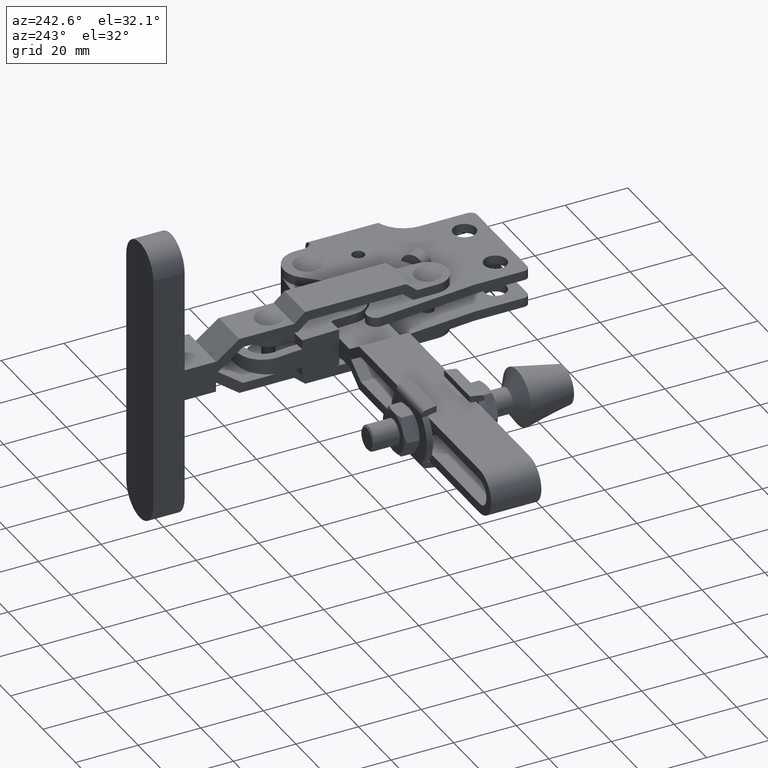
[diagram: clean part render]
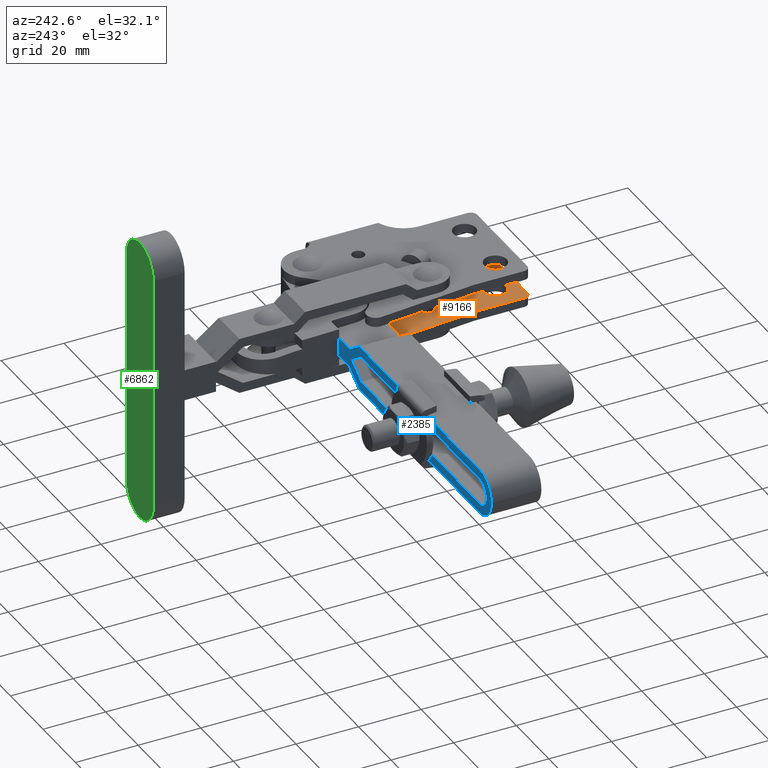
[diagram: same view with three faces highlighted in distinct colors, each labeled with its STEP entity id]
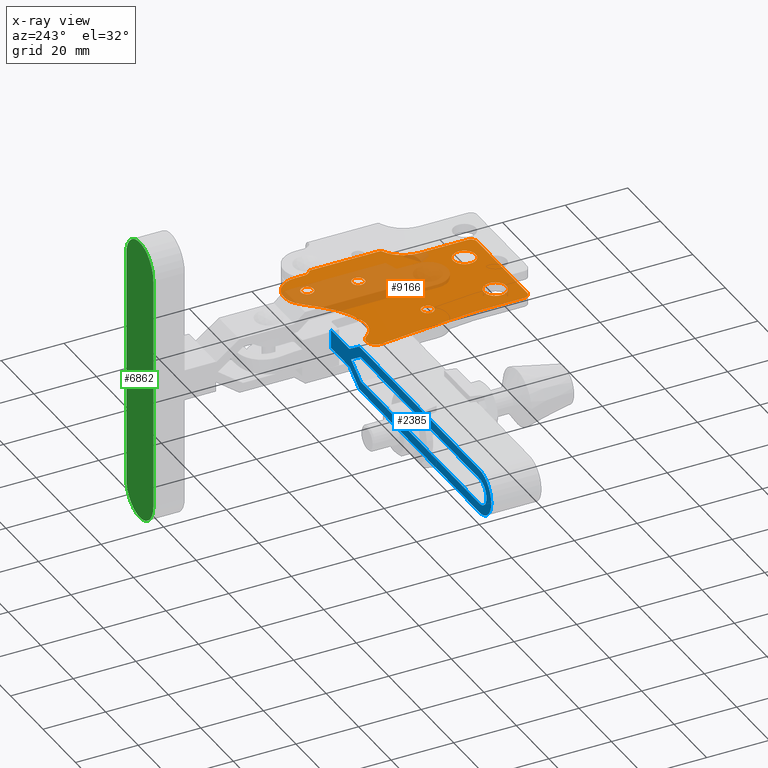
[diagram: x-ray of the same camera — body ghosted, the three highlighted faces saturated]
A machine part, auxiliary view with three faces highlighted in distinct colors.
The next image is the same camera in x-ray (body ghosted, the three faces saturated) — at least one of them is partly hidden behind the body in this view.
Their STEP definitions:

[orange] entity #9166 — the highlighted planar face has unit normal (0, 0, -1).
#13 = DIRECTION ( 'NONE',  ( -7.034546684939453800E-018, -3.150134990220476500E-018, 1.000000000000000000 ) ) ;
#28 = CIRCLE ( 'NONE', #2234, 2.000000000000000000 ) ;
#88 = DIRECTION ( 'NONE',  ( -1.000000000000000000, 0.0000000000000000000, 0.0000000000000000000 ) ) ;
#194 = AXIS2_PLACEMENT_3D ( 'NONE', #7369, #1947, #8280 ) ;
#195 = CIRCLE ( 'NONE', #6566, 3.600000000000047600 ) ;
#256 = AXIS2_PLACEMENT_3D ( 'NONE', #476, #6788, #1373 ) ;
#325 = ORIENTED_EDGE ( 'NONE', *, *, #6746, .F. ) ;
#438 = FACE_OUTER_BOUND ( 'NONE', #10297, .T. ) ;
#476 = CARTESIAN_POINT ( 'NONE',  ( -44.14000000000020000, 34.49999999999974400, -3.000000000000012900 ) ) ;
#538 = VERTEX_POINT ( 'NONE', #10462 ) ;
#550 = CARTESIAN_POINT ( 'NONE',  ( -12.20000000000020400, 39.79999999999972700, -3.000000000000012900 ) ) ;
#650 = EDGE_CURVE ( 'NONE', #8435, #7414, #28, .T. ) ;
#652 = AXIS2_PLACEMENT_3D ( 'NONE', #5413, #13, #6321 ) ;
#657 = VERTEX_POINT ( 'NONE', #4414 ) ;
#716 = EDGE_LOOP ( 'NONE', ( #6043, #5696 ) ) ;
#726 = VECTOR ( 'NONE', #6033, 1000.000000000000000 ) ;
#798 = CARTESIAN_POINT ( 'NONE',  ( -3.018960108299565600, 34.35549740532390200, -3.000000000000012900 ) ) ;
#808 = EDGE_CURVE ( 'NONE', #3385, #3134, #3982, .T. ) ;
#848 = DIRECTION ( 'NONE',  ( -1.000000000000000000, 0.0000000000000000000, 0.0000000000000000000 ) ) ;
#888 = CIRCLE ( 'NONE', #2112, 2.999999999999954300 ) ;
#1190 = CARTESIAN_POINT ( 'NONE',  ( -14.50000000000003600, 24.69999999999972900, -3.000000000000013800 ) ) ;
#1301 = CIRCLE ( 'NONE', #4063, 7.499999999999985800 ) ;
#1349 = DIRECTION ( 'NONE',  ( -0.09966041305296324800, 0.9950215083454793100, 2.433386241199668700E-018 ) ) ;
#1350 = VERTEX_POINT ( 'NONE', #4918 ) ;
#1362 = ORIENTED_EDGE ( 'NONE', *, *, #4899, .T. ) ;
#1373 = DIRECTION ( 'NONE',  ( -1.000000000000000000, 0.0000000000000000000, 0.0000000000000000000 ) ) ;
#1441 = DIRECTION ( 'NONE',  ( -1.000000000000000000, 0.0000000000000000000, 0.0000000000000000000 ) ) ;
#1442 = AXIS2_PLACEMENT_3D ( 'NONE', #7009, #11596, #6114 ) ;
#1475 = VERTEX_POINT ( 'NONE', #5278 ) ;
#1490 = VERTEX_POINT ( 'NONE', #8958 ) ;
#1538 = CARTESIAN_POINT ( 'NONE',  ( -4.700000000000178700, 39.79999999999973400, -3.000000000000012900 ) ) ;
#1611 = EDGE_CURVE ( 'NONE', #7385, #1657, #195, .T. ) ;
#1622 = CARTESIAN_POINT ( 'NONE',  ( -14.20000000000020400, 39.79999999999972700, -3.000000000000012900 ) ) ;
#1631 = ORIENTED_EDGE ( 'NONE', *, *, #4835, .F. ) ;
#1657 = VERTEX_POINT ( 'NONE', #7362 ) ;
#1730 = CARTESIAN_POINT ( 'NONE',  ( -3.018960108299567400, 34.49999999999974400, -3.000000000000013800 ) ) ;
#1850 = CARTESIAN_POINT ( 'NONE',  ( -3.018960108299569200, 11.54236631933047400, -3.000000000000012900 ) ) ;
#1877 = CARTESIAN_POINT ( 'NONE',  ( -34.80000000000018900, 14.09999999999973900, -3.000000000000013800 ) ) ;
#1891 = LINE ( 'NONE', #3996, #8824 ) ;
#1947 = DIRECTION ( 'NONE',  ( 7.034546684939453800E-018, 3.150134990220476500E-018, -1.000000000000000000 ) ) ;
#2031 = EDGE_CURVE ( 'NONE', #11252, #538, #1891, .T. ) ;
#2047 = AXIS2_PLACEMENT_3D ( 'NONE', #2489, #8840, #3406 ) ;
#2091 = DIRECTION ( 'NONE',  ( -1.000000000000000000, 0.0000000000000000000, 0.0000000000000000000 ) ) ;
#2112 = AXIS2_PLACEMENT_3D ( 'NONE', #10154, #4683, #11061 ) ;
#2234 = AXIS2_PLACEMENT_3D ( 'NONE', #9906, #4460, #848 ) ;
#2265 = CARTESIAN_POINT ( 'NONE',  ( -20.65000000000005500, -7.900000000000260600, -3.000000000000012900 ) ) ;
#2438 = ORIENTED_EDGE ( 'NONE', *, *, #9763, .T. ) ;
#2453 = DIRECTION ( 'NONE',  ( -7.034546684939453800E-018, -3.150134990220476500E-018, 1.000000000000000000 ) ) ;
#2489 = CARTESIAN_POINT ( 'NONE',  ( -11.10000000000014500, -13.00000000000019700, -3.000000000000012900 ) ) ;
#2541 = CARTESIAN_POINT ( 'NONE',  ( -44.00000000000016300, 2.999999999999884500, -3.000000000000012900 ) ) ;
#2592 = DIRECTION ( 'NONE',  ( 7.034546684939453800E-018, 3.150134990220476500E-018, -1.000000000000000000 ) ) ;
#2605 = ORIENTED_EDGE ( 'NONE', *, *, #650, .T. ) ;
#2632 = EDGE_CURVE ( 'NONE', #3134, #4194, #2978, .T. ) ;
#2674 = CIRCLE ( 'NONE', #2047, 2.000000000000000000 ) ;
#2810 = CARTESIAN_POINT ( 'NONE',  ( -9.100000000000145300, -13.00000000000018700, -3.000000000000012900 ) ) ;
#2832 = FACE_BOUND ( 'NONE', #7280, .T. ) ;
#2852 = AXIS2_PLACEMENT_3D ( 'NONE', #8041, #2592, #8957 ) ;
#2919 = ORIENTED_EDGE ( 'NONE', *, *, #808, .F. ) ;
#2978 = CIRCLE ( 'NONE', #256, 2.999999999999926300 ) ;
#2987 = ORIENTED_EDGE ( 'NONE', *, *, #10712, .F. ) ;
#3107 = CARTESIAN_POINT ( 'NONE',  ( -11.10000000000014500, -15.00000000000019700, -3.000000000000012900 ) ) ;
#3123 = FACE_BOUND ( 'NONE', #11405, .T. ) ;
#3134 = VERTEX_POINT ( 'NONE', #10186 ) ;
#3140 = DIRECTION ( 'NONE',  ( 7.034546684939453800E-018, 3.150134990220476500E-018, -1.000000000000000000 ) ) ;
#3189 = LINE ( 'NONE', #6786, #10153 ) ;
#3334 = VECTOR ( 'NONE', #10756, 1000.000000000000000 ) ;
#3376 = VERTEX_POINT ( 'NONE', #1877 ) ;
#3385 = VERTEX_POINT ( 'NONE', #7296 ) ;
#3406 = DIRECTION ( 'NONE',  ( -1.000000000000000000, 0.0000000000000000000, 0.0000000000000000000 ) ) ;
#3470 = ORIENTED_EDGE ( 'NONE', *, *, #5221, .F. ) ;
#3504 = CARTESIAN_POINT ( 'NONE',  ( -12.20000000000019100, 39.79999999999973400, -3.000000000000012900 ) ) ;
#3574 = CARTESIAN_POINT ( 'NONE',  ( -36.80000000000019600, 14.09999999999973900, -3.000000000000013800 ) ) ;
#3615 = CARTESIAN_POINT ( 'NONE',  ( -22.23240969598106500, 40.16104804665158700, -3.000000000000012900 ) ) ;
#3626 = ORIENTED_EDGE ( 'NONE', *, *, #6143, .F. ) ;
#3661 = ORIENTED_EDGE ( 'NONE', *, *, #2031, .F. ) ;
#3753 = CARTESIAN_POINT ( 'NONE',  ( -4.700000000000178700, 39.79999999999973400, -3.000000000000012900 ) ) ;
#3789 = ORIENTED_EDGE ( 'NONE', *, *, #9113, .F. ) ;
#3818 = AXIS2_PLACEMENT_3D ( 'NONE', #4065, #10423, #4944 ) ;
#3911 = ORIENTED_EDGE ( 'NONE', *, *, #7509, .T. ) ;
#3982 = CIRCLE ( 'NONE', #3818, 2.999999999999926300 ) ;
#3996 = CARTESIAN_POINT ( 'NONE',  ( -22.23240969598106500, 40.16104804665158700, -3.000000000000012900 ) ) ;
#4003 = CARTESIAN_POINT ( 'NONE',  ( -44.00000000000016300, 2.999999999999884500, -3.000000000000012900 ) ) ;
#4063 = AXIS2_PLACEMENT_3D ( 'NONE', #4418, #10777, #5317 ) ;
#4065 = CARTESIAN_POINT ( 'NONE',  ( -44.14000000000020000, 34.49999999999974400, -3.000000000000012900 ) ) ;
#4094 = EDGE_CURVE ( 'NONE', #9905, #5505, #7317, .T. ) ;
#4194 = VERTEX_POINT ( 'NONE', #9467 ) ;
#4315 = PLANE ( 'NONE',  #1442 ) ;
#4399 = DIRECTION ( 'NONE',  ( -1.000000000000000000, 0.0000000000000000000, 0.0000000000000000000 ) ) ;
#4414 = CARTESIAN_POINT ( 'NONE',  ( -38.80000000000019600, 14.09999999999973900, -3.000000000000013800 ) ) ;
#4418 = CARTESIAN_POINT ( 'NONE',  ( -35.58457790342104200, 40.58726151478319400, -3.000000000000012900 ) ) ;
#4455 = EDGE_CURVE ( 'NONE', #7832, #10209, #9444, .T. ) ;
#4460 = DIRECTION ( 'NONE',  ( 7.034546684939453800E-018, 3.150134990220476500E-018, -1.000000000000000000 ) ) ;
#4464 = CIRCLE ( 'NONE', #652, 2.000000000000001800 ) ;
#4479 = DIRECTION ( 'NONE',  ( -1.000000000000000000, 0.0000000000000000000, 0.0000000000000000000 ) ) ;
#4484 = AXIS2_PLACEMENT_3D ( 'NONE', #3574, #9927, #4479 ) ;
#4506 = ORIENTED_EDGE ( 'NONE', *, *, #7796, .F. ) ;
#4655 = CIRCLE ( 'NONE', #7734, 3.600000000000047600 ) ;
#4683 = DIRECTION ( 'NONE',  ( -7.034546684939453800E-018, -3.150134990220476500E-018, 1.000000000000000000 ) ) ;
#4712 = ORIENTED_EDGE ( 'NONE', *, *, #8646, .T. ) ;
#4835 = EDGE_CURVE ( 'NONE', #1475, #11252, #10170, .T. ) ;
#4839 = CARTESIAN_POINT ( 'NONE',  ( -36.80000000000019600, 14.09999999999973900, -3.000000000000013800 ) ) ;
#4874 = AXIS2_PLACEMENT_3D ( 'NONE', #4839, #10972, #5075 ) ;
#4884 = DIRECTION ( 'NONE',  ( 0.6911580781339196100, 0.7227036121607712800, 7.138597703532629700E-018 ) ) ;
#4899 = EDGE_CURVE ( 'NONE', #7832, #5279, #4464, .T. ) ;
#4918 = CARTESIAN_POINT ( 'NONE',  ( -13.44999999999996200, -7.900000000000260600, -3.000000000000012900 ) ) ;
#4944 = DIRECTION ( 'NONE',  ( -1.000000000000000000, 0.0000000000000000000, 0.0000000000000000000 ) ) ;
#5030 = CIRCLE ( 'NONE', #9108, 2.000000000000000000 ) ;
#5075 = DIRECTION ( 'NONE',  ( -1.000000000000000000, 0.0000000000000000000, 0.0000000000000000000 ) ) ;
#5211 = FACE_BOUND ( 'NONE', #9355, .T. ) ;
#5221 = EDGE_CURVE ( 'NONE', #1490, #11016, #3189, .T. ) ;
#5222 = ORIENTED_EDGE ( 'NONE', *, *, #6592, .F. ) ;
#5255 = VECTOR ( 'NONE', #1349, 1000.000000000000100 ) ;
#5270 = EDGE_CURVE ( 'NONE', #1657, #7385, #7137, .T. ) ;
#5278 = CARTESIAN_POINT ( 'NONE',  ( -33.56368271917276800, 33.36465930683336000, -3.000000000000012900 ) ) ;
#5279 = VERTEX_POINT ( 'NONE', #7330 ) ;
#5282 = DIRECTION ( 'NONE',  ( -1.000000000000000000, 1.361850839637407300E-016, -7.034546684939453800E-018 ) ) ;
#5294 = AXIS2_PLACEMENT_3D ( 'NONE', #7898, #2453, #8796 ) ;
#5300 = VERTEX_POINT ( 'NONE', #3753 ) ;
#5302 = CARTESIAN_POINT ( 'NONE',  ( -44.00000000000016300, 2.999999999999884500, -3.000000000000012900 ) ) ;
#5317 = DIRECTION ( 'NONE',  ( -1.000000000000000000, 0.0000000000000000000, 0.0000000000000000000 ) ) ;
#5321 = DIRECTION ( 'NONE',  ( -7.034546684939453800E-018, -3.150134990220476500E-018, 1.000000000000000000 ) ) ;
#5344 = CARTESIAN_POINT ( 'NONE',  ( -14.50000000000003600, 24.69999999999972900, -3.000000000000013800 ) ) ;
#5347 = ORIENTED_EDGE ( 'NONE', *, *, #7278, .T. ) ;
#5392 = CIRCLE ( 'NONE', #5294, 10.00000000000001200 ) ;
#5413 = CARTESIAN_POINT ( 'NONE',  ( -42.00000000000016300, -13.00000000000019400, -3.000000000000012900 ) ) ;
#5484 = DIRECTION ( 'NONE',  ( 7.034546684939453800E-018, 3.150134990220476500E-018, -1.000000000000000000 ) ) ;
#5505 = VERTEX_POINT ( 'NONE', #11340 ) ;
#5696 = ORIENTED_EDGE ( 'NONE', *, *, #6464, .T. ) ;
#5911 = CIRCLE ( 'NONE', #10936, 7.500000000000018700 ) ;
#5928 = CARTESIAN_POINT ( 'NONE',  ( -10.20000000000020400, 39.79999999999972700, -3.000000000000012900 ) ) ;
#5970 = EDGE_CURVE ( 'NONE', #10209, #3385, #10128, .T. ) ;
#6033 = DIRECTION ( 'NONE',  ( -6.276584017286179000E-016, -1.000000000000000000, -3.150134990220480700E-018 ) ) ;
#6043 = ORIENTED_EDGE ( 'NONE', *, *, #9265, .T. ) ;
#6083 = CIRCLE ( 'NONE', #2852, 3.600000000000047600 ) ;
#6114 = DIRECTION ( 'NONE',  ( -1.000000000000000000, -3.150134990220517700E-018, -7.034546684939453800E-018 ) ) ;
#6143 = EDGE_CURVE ( 'NONE', #9017, #5279, #7115, .T. ) ;
#6240 = CIRCLE ( 'NONE', #4874, 2.000000000000001800 ) ;
#6260 = DIRECTION ( 'NONE',  ( -1.000000000000000000, 0.0000000000000000000, 0.0000000000000000000 ) ) ;
#6321 = DIRECTION ( 'NONE',  ( -1.000000000000000000, 0.0000000000000000000, 0.0000000000000000000 ) ) ;
#6464 = EDGE_CURVE ( 'NONE', #3376, #657, #6240, .T. ) ;
#6566 = AXIS2_PLACEMENT_3D ( 'NONE', #10938, #5484, #88 ) ;
#6590 = EDGE_CURVE ( 'NONE', #1350, #7318, #6083, .T. ) ;
#6592 = EDGE_CURVE ( 'NONE', #4194, #1475, #1301, .T. ) ;
#6746 = EDGE_CURVE ( 'NONE', #7181, #7006, #888, .T. ) ;
#6786 = CARTESIAN_POINT ( 'NONE',  ( -9.100000000000196800, 2.342271120390496000, -3.000000000000012900 ) ) ;
#6788 = DIRECTION ( 'NONE',  ( 7.034546684939453800E-018, 3.150134990220476500E-018, -1.000000000000000000 ) ) ;
#6861 = DIRECTION ( 'NONE',  ( 7.034546684939453800E-018, 3.150134990220476500E-018, -1.000000000000000000 ) ) ;
#7006 = VERTEX_POINT ( 'NONE', #798 ) ;
#7009 = CARTESIAN_POINT ( 'NONE',  ( -44.14000000000020000, 34.49999999999974400, -3.000000000000012900 ) ) ;
#7115 = LINE ( 'NONE', #9834, #8681 ) ;
#7135 = CARTESIAN_POINT ( 'NONE',  ( -44.00000000000016300, -13.00000000000019200, -3.000000000000012900 ) ) ;
#7137 = CIRCLE ( 'NONE', #194, 3.600000000000047600 ) ;
#7181 = VERTEX_POINT ( 'NONE', #7530 ) ;
#7278 = EDGE_CURVE ( 'NONE', #7318, #1350, #4655, .T. ) ;
#7280 = EDGE_LOOP ( 'NONE', ( #4712, #8515 ) ) ;
#7296 = CARTESIAN_POINT ( 'NONE',  ( -47.12506452503656400, 34.20101876084086700, -3.000000000000012900 ) ) ;
#7317 = CIRCLE ( 'NONE', #7777, 2.000000000000003600 ) ;
#7318 = VERTEX_POINT ( 'NONE', #2265 ) ;
#7330 = CARTESIAN_POINT ( 'NONE',  ( -42.00000000000016300, -15.00000000000019400, -3.000000000000012900 ) ) ;
#7362 = CARTESIAN_POINT ( 'NONE',  ( -39.65000000000019000, -7.900000000000260600, -3.000000000000012900 ) ) ;
#7369 = CARTESIAN_POINT ( 'NONE',  ( -36.05000000000014600, -7.900000000000260600, -3.000000000000012900 ) ) ;
#7385 = VERTEX_POINT ( 'NONE', #10477 ) ;
#7414 = VERTEX_POINT ( 'NONE', #5928 ) ;
#7505 = DIRECTION ( 'NONE',  ( 7.034546684939453800E-018, 3.150134990220476500E-018, -1.000000000000000000 ) ) ;
#7509 = EDGE_CURVE ( 'NONE', #9017, #11016, #2674, .T. ) ;
#7530 = CARTESIAN_POINT ( 'NONE',  ( -4.700000000000187600, 37.04999999999972700, -3.000000000000012900 ) ) ;
#7589 = AXIS2_PLACEMENT_3D ( 'NONE', #5344, #11727, #6260 ) ;
#7593 = ORIENTED_EDGE ( 'NONE', *, *, #5970, .F. ) ;
#7648 = FACE_BOUND ( 'NONE', #716, .T. ) ;
#7734 = AXIS2_PLACEMENT_3D ( 'NONE', #8560, #3140, #9483 ) ;
#7777 = AXIS2_PLACEMENT_3D ( 'NONE', #1190, #7505, #2091 ) ;
#7796 = EDGE_CURVE ( 'NONE', #538, #5300, #5911, .T. ) ;
#7832 = VERTEX_POINT ( 'NONE', #7135 ) ;
#7896 = ORIENTED_EDGE ( 'NONE', *, *, #10126, .T. ) ;
#7898 = CARTESIAN_POINT ( 'NONE',  ( 0.8999999999998030700, 2.342271120390496000, -3.000000000000013800 ) ) ;
#8041 = CARTESIAN_POINT ( 'NONE',  ( -17.05000000000001100, -7.900000000000260600, -3.000000000000012900 ) ) ;
#8223 = LINE ( 'NONE', #1538, #726 ) ;
#8280 = DIRECTION ( 'NONE',  ( -1.000000000000000000, 0.0000000000000000000, 0.0000000000000000000 ) ) ;
#8435 = VERTEX_POINT ( 'NONE', #1622 ) ;
#8515 = ORIENTED_EDGE ( 'NONE', *, *, #4094, .T. ) ;
#8560 = CARTESIAN_POINT ( 'NONE',  ( -17.05000000000001100, -7.900000000000260600, -3.000000000000012900 ) ) ;
#8646 = EDGE_CURVE ( 'NONE', #5505, #9905, #10527, .T. ) ;
#8681 = VECTOR ( 'NONE', #5282, 1000.000000000000000 ) ;
#8713 = ORIENTED_EDGE ( 'NONE', *, *, #4455, .F. ) ;
#8717 = VERTEX_POINT ( 'NONE', #1850 ) ;
#8796 = DIRECTION ( 'NONE',  ( 1.000000000000000000, 0.0000000000000000000, 0.0000000000000000000 ) ) ;
#8824 = VECTOR ( 'NONE', #4884, 1000.000000000000100 ) ;
#8840 = DIRECTION ( 'NONE',  ( -7.034546684939453800E-018, -3.150134990220476500E-018, 1.000000000000000000 ) ) ;
#8910 = LINE ( 'NONE', #1730, #11049 ) ;
#8957 = DIRECTION ( 'NONE',  ( -1.000000000000000000, 0.0000000000000000000, 0.0000000000000000000 ) ) ;
#8958 = CARTESIAN_POINT ( 'NONE',  ( -9.100000000000196800, 2.342271120390496000, -3.000000000000012900 ) ) ;
#8995 = DIRECTION ( 'NONE',  ( -3.150134990220517700E-018, 1.000000000000000000, 3.150134990220476500E-018 ) ) ;
#9017 = VERTEX_POINT ( 'NONE', #3107 ) ;
#9108 = AXIS2_PLACEMENT_3D ( 'NONE', #550, #6861, #1441 ) ;
#9113 = EDGE_CURVE ( 'NONE', #5300, #7181, #8223, .T. ) ;
#9166 = ADVANCED_FACE ( 'NONE', ( #7648, #3123, #5211, #2832, #438, #10082 ), #4315, .F. ) ;
#9265 = EDGE_CURVE ( 'NONE', #657, #3376, #11074, .T. ) ;
#9355 = EDGE_LOOP ( 'NONE', ( #5347, #11472 ) ) ;
#9444 = LINE ( 'NONE', #5302, #3334 ) ;
#9467 = CARTESIAN_POINT ( 'NONE',  ( -41.69559368669189300, 36.23921757565213400, -3.000000000000013800 ) ) ;
#9483 = DIRECTION ( 'NONE',  ( -1.000000000000000000, 0.0000000000000000000, 0.0000000000000000000 ) ) ;
#9763 = EDGE_CURVE ( 'NONE', #8717, #7006, #8910, .T. ) ;
#9834 = CARTESIAN_POINT ( 'NONE',  ( -39.00000000000006400, -15.00000000000019400, -3.000000000000012900 ) ) ;
#9855 = DIRECTION ( 'NONE',  ( 7.034546684939453800E-018, 3.150134990220476500E-018, -1.000000000000000000 ) ) ;
#9891 = EDGE_LOOP ( 'NONE', ( #7896, #2605 ) ) ;
#9905 = VERTEX_POINT ( 'NONE', #10065 ) ;
#9906 = CARTESIAN_POINT ( 'NONE',  ( -12.20000000000020400, 39.79999999999972700, -3.000000000000012900 ) ) ;
#9927 = DIRECTION ( 'NONE',  ( 7.034546684939453800E-018, 3.150134990220476500E-018, -1.000000000000000000 ) ) ;
#10065 = CARTESIAN_POINT ( 'NONE',  ( -12.50000000000003200, 24.69999999999972900, -3.000000000000013800 ) ) ;
#10082 = FACE_BOUND ( 'NONE', #9891, .T. ) ;
#10126 = EDGE_CURVE ( 'NONE', #7414, #8435, #5030, .T. ) ;
#10128 = LINE ( 'NONE', #4003, #5255 ) ;
#10153 = VECTOR ( 'NONE', #11334, 1000.000000000000000 ) ;
#10154 = CARTESIAN_POINT ( 'NONE',  ( -1.700000000000233300, 37.04999999999972700, -3.000000000000012900 ) ) ;
#10170 = CIRCLE ( 'NONE', #11201, 24.99999999999998200 ) ;
#10186 = CARTESIAN_POINT ( 'NONE',  ( -47.14000000000012800, 34.49999999999974400, -3.000000000000012900 ) ) ;
#10209 = VERTEX_POINT ( 'NONE', #2541 ) ;
#10293 = ORIENTED_EDGE ( 'NONE', *, *, #2632, .F. ) ;
#10297 = EDGE_LOOP ( 'NONE', ( #8713, #1362, #3626, #3911, #3470, #2987, #2438, #325, #3789, #4506, #3661, #1631, #5222, #10293, #2919, #7593 ) ) ;
#10423 = DIRECTION ( 'NONE',  ( 7.034546684939453800E-018, 3.150134990220476500E-018, -1.000000000000000000 ) ) ;
#10462 = CARTESIAN_POINT ( 'NONE',  ( -17.62027709120599200, 44.98368558600413500, -3.000000000000012900 ) ) ;
#10477 = CARTESIAN_POINT ( 'NONE',  ( -32.45000000000009500, -7.900000000000260600, -3.000000000000012900 ) ) ;
#10527 = CIRCLE ( 'NONE', #7589, 2.000000000000003600 ) ;
#10712 = EDGE_CURVE ( 'NONE', #8717, #1490, #5392, .T. ) ;
#10756 = DIRECTION ( 'NONE',  ( -3.150134990220517700E-018, 1.000000000000000000, 3.150134990220476500E-018 ) ) ;
#10777 = DIRECTION ( 'NONE',  ( -7.034546684939453800E-018, -3.150134990220476500E-018, 1.000000000000000000 ) ) ;
#10780 = CARTESIAN_POINT ( 'NONE',  ( -40.30000000000035200, 57.43999999999954300, -3.000000000000013800 ) ) ;
#10936 = AXIS2_PLACEMENT_3D ( 'NONE', #3504, #9855, #4399 ) ;
#10938 = CARTESIAN_POINT ( 'NONE',  ( -36.05000000000014600, -7.900000000000260600, -3.000000000000012900 ) ) ;
#10972 = DIRECTION ( 'NONE',  ( 7.034546684939453800E-018, 3.150134990220476500E-018, -1.000000000000000000 ) ) ;
#11016 = VERTEX_POINT ( 'NONE', #2810 ) ;
#11049 = VECTOR ( 'NONE', #8995, 1000.000000000000000 ) ;
#11061 = DIRECTION ( 'NONE',  ( -1.000000000000000000, 0.0000000000000000000, 0.0000000000000000000 ) ) ;
#11074 = CIRCLE ( 'NONE', #4484, 2.000000000000001800 ) ;
#11201 = AXIS2_PLACEMENT_3D ( 'NONE', #10780, #5321, #11701 ) ;
#11252 = VERTEX_POINT ( 'NONE', #3615 ) ;
#11334 = DIRECTION ( 'NONE',  ( 3.376383717151691500E-015, -1.000000000000000000, -3.150134990220453000E-018 ) ) ;
#11340 = CARTESIAN_POINT ( 'NONE',  ( -16.50000000000003900, 24.69999999999972900, -3.000000000000013800 ) ) ;
#11405 = EDGE_LOOP ( 'NONE', ( #11530, #11617 ) ) ;
#11472 = ORIENTED_EDGE ( 'NONE', *, *, #6590, .T. ) ;
#11530 = ORIENTED_EDGE ( 'NONE', *, *, #5270, .T. ) ;
#11596 = DIRECTION ( 'NONE',  ( 7.034546684939453800E-018, 3.150134990220476500E-018, -1.000000000000000000 ) ) ;
#11617 = ORIENTED_EDGE ( 'NONE', *, *, #1611, .T. ) ;
#11701 = DIRECTION ( 'NONE',  ( -1.000000000000000000, 0.0000000000000000000, 0.0000000000000000000 ) ) ;
#11727 = DIRECTION ( 'NONE',  ( 7.034546684939453800E-018, 3.150134990220476500E-018, -1.000000000000000000 ) ) ;

[blue] entity #2385 — the highlighted planar face has unit normal (0, 1, 0).
#59 = LINE ( 'NONE', #11698, #9139 ) ;
#116 = CARTESIAN_POINT ( 'NONE',  ( -138.0000000000000000, 47.80000000000046600, -1.993229786239712900E-015 ) ) ;
#144 = VECTOR ( 'NONE', #6699, 1000.000000000000000 ) ;
#235 = VERTEX_POINT ( 'NONE', #3913 ) ;
#372 = ORIENTED_EDGE ( 'NONE', *, *, #11315, .F. ) ;
#470 = VERTEX_POINT ( 'NONE', #5944 ) ;
#565 = EDGE_LOOP ( 'NONE', ( #6637, #3856, #4828, #7348, #8350, #2666 ) ) ;
#599 = CARTESIAN_POINT ( 'NONE',  ( -59.71358415852473200, 47.80000000000014600, 7.150000000000229500 ) ) ;
#604 = LINE ( 'NONE', #9683, #7528 ) ;
#722 = LINE ( 'NONE', #5761, #144 ) ;
#938 = EDGE_CURVE ( 'NONE', #470, #6718, #5540, .T. ) ;
#949 = VERTEX_POINT ( 'NONE', #3317 ) ;
#1138 = VECTOR ( 'NONE', #7763, 1000.000000000000000 ) ;
#1177 = DIRECTION ( 'NONE',  ( 7.034546684939652600E-018, 3.150134990220476900E-018, -1.000000000000000000 ) ) ;
#1503 = EDGE_CURVE ( 'NONE', #8573, #235, #59, .T. ) ;
#1542 = LINE ( 'NONE', #10575, #10923 ) ;
#1576 = CARTESIAN_POINT ( 'NONE',  ( -133.8499999999999700, 47.80000000000045200, 4.150000000000033200 ) ) ;
#1620 = EDGE_LOOP ( 'NONE', ( #11628, #5918, #8567, #8962, #10160, #2779, #11717, #10794, #372 ) ) ;
#1859 = LINE ( 'NONE', #7050, #3963 ) ;
#1953 = DIRECTION ( 'NONE',  ( 4.081963296954256900E-015, 1.000000000000000000, 3.150134990220466500E-018 ) ) ;
#1954 = VERTEX_POINT ( 'NONE', #5180 ) ;
#2171 = CARTESIAN_POINT ( 'NONE',  ( -133.8499999999999700, 47.80000000000045200, 4.249781925278084400E-015 ) ) ;
#2325 = CARTESIAN_POINT ( 'NONE',  ( -133.8499999999999400, 47.80000000000045200, 4.150000000000033200 ) ) ;
#2385 = ADVANCED_FACE ( 'NONE', ( #5669, #10521 ), #2456, .T. ) ;
#2456 = PLANE ( 'NONE',  #5977 ) ;
#2586 = EDGE_CURVE ( 'NONE', #3305, #1954, #8941, .T. ) ;
#2666 = ORIENTED_EDGE ( 'NONE', *, *, #9335, .F. ) ;
#2752 = EDGE_CURVE ( 'NONE', #1954, #2774, #1542, .T. ) ;
#2774 = VERTEX_POINT ( 'NONE', #599 ) ;
#2779 = ORIENTED_EDGE ( 'NONE', *, *, #8913, .T. ) ;
#2814 = CARTESIAN_POINT ( 'NONE',  ( -133.8499999999999700, 47.80000000000045200, 4.249781925278084400E-015 ) ) ;
#3082 = DIRECTION ( 'NONE',  ( -1.000000000000000000, 3.881898687500523100E-015, -1.498267622071322400E-015 ) ) ;
#3229 = VERTEX_POINT ( 'NONE', #9421 ) ;
#3269 = LINE ( 'NONE', #5705, #7804 ) ;
#3305 = VERTEX_POINT ( 'NONE', #6287 ) ;
#3317 = CARTESIAN_POINT ( 'NONE',  ( -133.8499999999999700, 47.80000000000045200, -7.150000000000027900 ) ) ;
#3421 = VERTEX_POINT ( 'NONE', #7334 ) ;
#3498 = DIRECTION ( 'NONE',  ( -0.8224388460565738000, 3.358957149017856500E-015, -0.5688535351890954300 ) ) ;
#3543 = VECTOR ( 'NONE', #10044, 1000.000000000000000 ) ;
#3656 = CARTESIAN_POINT ( 'NONE',  ( -133.8499999999999400, 47.80000000000045200, -4.150000000000024300 ) ) ;
#3722 = DIRECTION ( 'NONE',  ( -1.000000000000000000, 3.344045254895015300E-015, -1.498267622071320000E-015 ) ) ;
#3810 = VECTOR ( 'NONE', #11395, 1000.000000000000000 ) ;
#3817 = LINE ( 'NONE', #4594, #3543 ) ;
#3856 = ORIENTED_EDGE ( 'NONE', *, *, #8718, .F. ) ;
#3913 = CARTESIAN_POINT ( 'NONE',  ( -54.64999999999932400, 47.80000000000013200, 2.081668171172168500E-014 ) ) ;
#3963 = VECTOR ( 'NONE', #3498, 1000.000000000000000 ) ;
#4007 = CARTESIAN_POINT ( 'NONE',  ( -42.19016994374941000, 47.80000000000004700, 2.999999999999913400 ) ) ;
#4027 = AXIS2_PLACEMENT_3D ( 'NONE', #7377, #1953, #8290 ) ;
#4215 = CARTESIAN_POINT ( 'NONE',  ( -133.8499999999999700, 47.80000000000045200, 4.249781925278084400E-015 ) ) ;
#4439 = VERTEX_POINT ( 'NONE', #10716 ) ;
#4594 = CARTESIAN_POINT ( 'NONE',  ( -140.9999999999999700, 47.80000000000048000, -7.150000000000027900 ) ) ;
#4828 = ORIENTED_EDGE ( 'NONE', *, *, #10697, .F. ) ;
#5005 = CARTESIAN_POINT ( 'NONE',  ( -59.71358415852468200, 47.80000000000014600, 7.149999999999992400 ) ) ;
#5101 = DIRECTION ( 'NONE',  ( -1.000000000000000000, 3.344045254895015300E-015, -1.498267622071320000E-015 ) ) ;
#5164 = DIRECTION ( 'NONE',  ( 4.081963296954256900E-015, 1.000000000000000000, 3.150134990220466500E-018 ) ) ;
#5180 = CARTESIAN_POINT ( 'NONE',  ( -133.8499999999999700, 47.80000000000045200, 7.150000000000227700 ) ) ;
#5540 = CIRCLE ( 'NONE', #5632, 4.150000000000043000 ) ;
#5632 = AXIS2_PLACEMENT_3D ( 'NONE', #4215, #10576, #5101 ) ;
#5637 = LINE ( 'NONE', #2325, #1138 ) ;
#5669 = FACE_OUTER_BOUND ( 'NONE', #1620, .T. ) ;
#5705 = CARTESIAN_POINT ( 'NONE',  ( -42.19016994374941000, 47.80000000000004700, 7.150000000000230400 ) ) ;
#5761 = CARTESIAN_POINT ( 'NONE',  ( -53.71358415852403600, 47.80000000000012500, -2.999999999999975100 ) ) ;
#5918 = ORIENTED_EDGE ( 'NONE', *, *, #2586, .T. ) ;
#5944 = CARTESIAN_POINT ( 'NONE',  ( -133.8499999999999700, 47.80000000000045200, -4.150000000000024300 ) ) ;
#5977 = AXIS2_PLACEMENT_3D ( 'NONE', #10629, #5164, #11555 ) ;
#6204 = LINE ( 'NONE', #5005, #3810 ) ;
#6287 = CARTESIAN_POINT ( 'NONE',  ( -141.0000000000000000, 47.80000000000048000, -6.488032652453692800E-015 ) ) ;
#6378 = VECTOR ( 'NONE', #10920, 1000.000000000000000 ) ;
#6637 = ORIENTED_EDGE ( 'NONE', *, *, #938, .F. ) ;
#6669 = LINE ( 'NONE', #3656, #6378 ) ;
#6699 = DIRECTION ( 'NONE',  ( -1.000000000000000000, 4.081963296954256900E-015, -3.471411097417185700E-015 ) ) ;
#6718 = VERTEX_POINT ( 'NONE', #116 ) ;
#6976 = AXIS2_PLACEMENT_3D ( 'NONE', #2171, #8501, #3082 ) ;
#7050 = CARTESIAN_POINT ( 'NONE',  ( -53.71358415852405000, 47.80000000000012500, -2.999999999999959600 ) ) ;
#7220 = LINE ( 'NONE', #11591, #9933 ) ;
#7241 = EDGE_CURVE ( 'NONE', #3229, #8214, #722, .T. ) ;
#7329 = CARTESIAN_POINT ( 'NONE',  ( -60.64999999999975700, 47.80000000000014600, -4.150000000000026100 ) ) ;
#7334 = CARTESIAN_POINT ( 'NONE',  ( -53.71358415852441200, 47.80000000000012500, 2.999999999999863700 ) ) ;
#7348 = ORIENTED_EDGE ( 'NONE', *, *, #1503, .F. ) ;
#7377 = CARTESIAN_POINT ( 'NONE',  ( -133.8499999999999700, 47.80000000000045200, 4.249781925278084400E-015 ) ) ;
#7380 = EDGE_CURVE ( 'NONE', #2774, #3421, #6204, .T. ) ;
#7517 = VERTEX_POINT ( 'NONE', #1576 ) ;
#7528 = VECTOR ( 'NONE', #8756, 1000.000000000000000 ) ;
#7536 = EDGE_CURVE ( 'NONE', #3421, #10528, #7220, .T. ) ;
#7692 = CARTESIAN_POINT ( 'NONE',  ( -53.71358415852406400, 47.80000000000012500, -2.999999999999975100 ) ) ;
#7693 = VERTEX_POINT ( 'NONE', #7329 ) ;
#7763 = DIRECTION ( 'NONE',  ( 1.000000000000000000, -4.081963296954256900E-015, -3.976050292694482200E-016 ) ) ;
#7804 = VECTOR ( 'NONE', #1177, 1000.000000000000000 ) ;
#7930 = DIRECTION ( 'NONE',  ( 1.000000000000000000, -4.081963296954256900E-015, 6.886807426939579500E-015 ) ) ;
#8214 = VERTEX_POINT ( 'NONE', #7692 ) ;
#8290 = DIRECTION ( 'NONE',  ( -1.000000000000000000, 3.881898687500523100E-015, -1.498267622071322400E-015 ) ) ;
#8350 = ORIENTED_EDGE ( 'NONE', *, *, #9573, .F. ) ;
#8501 = DIRECTION ( 'NONE',  ( 4.081963296954256900E-015, 1.000000000000000000, 3.150134990220466500E-018 ) ) ;
#8567 = ORIENTED_EDGE ( 'NONE', *, *, #2752, .T. ) ;
#8573 = VERTEX_POINT ( 'NONE', #9814 ) ;
#8718 = EDGE_CURVE ( 'NONE', #7693, #470, #6669, .T. ) ;
#8756 = DIRECTION ( 'NONE',  ( -0.8224388460565738000, 3.358957149017856500E-015, -0.5688535351890954300 ) ) ;
#8913 = EDGE_CURVE ( 'NONE', #10528, #3229, #3269, .T. ) ;
#8941 = CIRCLE ( 'NONE', #6976, 7.150000000000044800 ) ;
#8962 = ORIENTED_EDGE ( 'NONE', *, *, #7380, .T. ) ;
#9139 = VECTOR ( 'NONE', #10778, 1000.000000000000000 ) ;
#9177 = DIRECTION ( 'NONE',  ( 4.081963296954256900E-015, 1.000000000000000000, 3.150134990220466500E-018 ) ) ;
#9335 = EDGE_CURVE ( 'NONE', #6718, #7517, #9363, .T. ) ;
#9363 = CIRCLE ( 'NONE', #11183, 4.150000000000043000 ) ;
#9421 = CARTESIAN_POINT ( 'NONE',  ( -42.19016994374941000, 47.80000000000004700, -2.999999999999942700 ) ) ;
#9573 = EDGE_CURVE ( 'NONE', #7517, #8573, #5637, .T. ) ;
#9683 = CARTESIAN_POINT ( 'NONE',  ( -54.64999999999929500, 47.80000000000013200, 4.149507638583122800E-014 ) ) ;
#9814 = CARTESIAN_POINT ( 'NONE',  ( -60.64999999999999900, 47.80000000000015300, 4.150000000000003900 ) ) ;
#9933 = VECTOR ( 'NONE', #7930, 1000.000000000000000 ) ;
#10044 = DIRECTION ( 'NONE',  ( 1.000000000000000000, -4.081963296954256900E-015, 5.992052180279355100E-018 ) ) ;
#10160 = ORIENTED_EDGE ( 'NONE', *, *, #7536, .T. ) ;
#10505 = CIRCLE ( 'NONE', #4027, 7.150000000000044800 ) ;
#10521 = FACE_BOUND ( 'NONE', #565, .T. ) ;
#10528 = VERTEX_POINT ( 'NONE', #4007 ) ;
#10575 = CARTESIAN_POINT ( 'NONE',  ( -140.9999999999999400, 47.80000000000048000, 7.150000000000229500 ) ) ;
#10576 = DIRECTION ( 'NONE',  ( 4.081963296954256900E-015, 1.000000000000000000, 3.150134990220466500E-018 ) ) ;
#10629 = CARTESIAN_POINT ( 'NONE',  ( -140.9999999999999400, 47.80000000000048000, 7.150000000000229500 ) ) ;
#10697 = EDGE_CURVE ( 'NONE', #235, #7693, #604, .T. ) ;
#10716 = CARTESIAN_POINT ( 'NONE',  ( -59.71358415852451200, 47.80000000000014600, -7.150000000000027900 ) ) ;
#10778 = DIRECTION ( 'NONE',  ( 0.8224388460565889000, -3.355373218166898000E-015, -0.5688535351890734400 ) ) ;
#10794 = ORIENTED_EDGE ( 'NONE', *, *, #11166, .T. ) ;
#10920 = DIRECTION ( 'NONE',  ( -1.000000000000000000, 4.081963296954256900E-015, 1.843049900128917700E-017 ) ) ;
#10923 = VECTOR ( 'NONE', #11480, 1000.000000000000000 ) ;
#11166 = EDGE_CURVE ( 'NONE', #8214, #4439, #1859, .T. ) ;
#11183 = AXIS2_PLACEMENT_3D ( 'NONE', #2814, #9177, #3722 ) ;
#11315 = EDGE_CURVE ( 'NONE', #949, #4439, #3817, .T. ) ;
#11333 = EDGE_CURVE ( 'NONE', #949, #3305, #10505, .T. ) ;
#11395 = DIRECTION ( 'NONE',  ( 0.8224388460565610300, -3.355373218166783600E-015, -0.5688535351891137500 ) ) ;
#11480 = DIRECTION ( 'NONE',  ( 1.000000000000000000, -4.081963296954256900E-015, 5.992052180279355100E-018 ) ) ;
#11555 = DIRECTION ( 'NONE',  ( -1.000000000000000000, 4.081963296954256900E-015, -1.498267622071325100E-015 ) ) ;
#11591 = CARTESIAN_POINT ( 'NONE',  ( -53.71358415852438400, 47.80000000000012500, 2.999999999999863700 ) ) ;
#11628 = ORIENTED_EDGE ( 'NONE', *, *, #11333, .T. ) ;
#11698 = CARTESIAN_POINT ( 'NONE',  ( -60.64999999999998400, 47.80000000000015300, 4.149999999999987900 ) ) ;
#11717 = ORIENTED_EDGE ( 'NONE', *, *, #7241, .T. ) ;

[green] entity #6862 — the highlighted planar face has unit normal (-0, 1, -0).
#385 = EDGE_CURVE ( 'NONE', #6110, #10644, #10251, .T. ) ;
#600 = DIRECTION ( 'NONE',  ( -3.836121266936960200E-033, 1.000000000000000000, -2.312983789176260900E-015 ) ) ;
#689 = AXIS2_PLACEMENT_3D ( 'NONE', #5987, #600, #6900 ) ;
#730 = CARTESIAN_POINT ( 'NONE',  ( -36.80000000000017500, 105.9999999999997900, -46.00000000000002800 ) ) ;
#820 = DIRECTION ( 'NONE',  ( 0.0000000000000000000, -1.662010515905923000E-015, -1.000000000000000000 ) ) ;
#914 = LINE ( 'NONE', #10156, #5409 ) ;
#1149 = EDGE_CURVE ( 'NONE', #6433, #4675, #3186, .T. ) ;
#1546 = AXIS2_PLACEMENT_3D ( 'NONE', #10220, #3922, #9416 ) ;
#1692 = ORIENTED_EDGE ( 'NONE', *, *, #9964, .T. ) ;
#1744 = EDGE_CURVE ( 'NONE', #10644, #6433, #914, .T. ) ;
#1798 = EDGE_LOOP ( 'NONE', ( #8763, #7921, #1692, #9932, #7575 ) ) ;
#2052 = CARTESIAN_POINT ( 'NONE',  ( -36.80000000000017500, 105.9999999999998000, -37.65000000000002700 ) ) ;
#2953 = DIRECTION ( 'NONE',  ( 0.0000000000000000000, -1.662010515905922400E-015, -1.000000000000000000 ) ) ;
#3186 = CIRCLE ( 'NONE', #5416, 8.349999999999999600 ) ;
#3219 = CARTESIAN_POINT ( 'NONE',  ( -45.15000000000017600, 105.9999999999998000, -37.65000000000002700 ) ) ;
#3247 = VECTOR ( 'NONE', #5914, 1000.000000000000000 ) ;
#3294 = CARTESIAN_POINT ( 'NONE',  ( -28.45000000000017700, 105.9999999999999700, 37.64999999999997000 ) ) ;
#3529 = LINE ( 'NONE', #4992, #3247 ) ;
#3922 = DIRECTION ( 'NONE',  ( -3.836121266936960200E-033, 1.000000000000000000, -2.312983789176260900E-015 ) ) ;
#4327 = CARTESIAN_POINT ( 'NONE',  ( -28.45000000000017700, 105.9999999999998000, -37.65000000000002700 ) ) ;
#4675 = VERTEX_POINT ( 'NONE', #3294 ) ;
#4757 = CARTESIAN_POINT ( 'NONE',  ( -45.15000000000017600, 105.9999999999999700, 37.64999999999997000 ) ) ;
#4992 = CARTESIAN_POINT ( 'NONE',  ( -28.45000000000017700, 105.9999999999999700, 37.64999999999997000 ) ) ;
#5409 = VECTOR ( 'NONE', #7436, 1000.000000000000000 ) ;
#5416 = AXIS2_PLACEMENT_3D ( 'NONE', #11668, #6197, #820 ) ;
#5914 = DIRECTION ( 'NONE',  ( -1.658530013599391200E-018, -2.211618805188462900E-015, -1.000000000000000000 ) ) ;
#5946 = PLANE ( 'NONE',  #689 ) ;
#5987 = CARTESIAN_POINT ( 'NONE',  ( -36.80000000000017500, 105.9999999999999700, 37.64999999999997000 ) ) ;
#6110 = VERTEX_POINT ( 'NONE', #730 ) ;
#6197 = DIRECTION ( 'NONE',  ( -3.836121266936960200E-033, 1.000000000000000000, -2.312983789176260900E-015 ) ) ;
#6433 = VERTEX_POINT ( 'NONE', #4757 ) ;
#6666 = FACE_OUTER_BOUND ( 'NONE', #1798, .T. ) ;
#6862 = ADVANCED_FACE ( 'NONE', ( #6666 ), #5946, .T. ) ;
#6900 = DIRECTION ( 'NONE',  ( -1.658530013599391000E-018, -2.312983789176260900E-015, -1.000000000000000000 ) ) ;
#7436 = DIRECTION ( 'NONE',  ( 1.658530013599391200E-018, 2.211618805188462900E-015, 1.000000000000000000 ) ) ;
#7575 = ORIENTED_EDGE ( 'NONE', *, *, #1744, .T. ) ;
#7921 = ORIENTED_EDGE ( 'NONE', *, *, #9561, .T. ) ;
#8386 = DIRECTION ( 'NONE',  ( -3.836121266936960200E-033, 1.000000000000000000, -2.312983789176260900E-015 ) ) ;
#8547 = VERTEX_POINT ( 'NONE', #4327 ) ;
#8763 = ORIENTED_EDGE ( 'NONE', *, *, #1149, .T. ) ;
#9416 = DIRECTION ( 'NONE',  ( 0.0000000000000000000, -1.662010515905922400E-015, -1.000000000000000000 ) ) ;
#9476 = CIRCLE ( 'NONE', #11765, 8.350000000000003200 ) ;
#9561 = EDGE_CURVE ( 'NONE', #4675, #8547, #3529, .T. ) ;
#9932 = ORIENTED_EDGE ( 'NONE', *, *, #385, .T. ) ;
#9964 = EDGE_CURVE ( 'NONE', #8547, #6110, #9476, .T. ) ;
#10156 = CARTESIAN_POINT ( 'NONE',  ( -45.15000000000017600, 105.9999999999998000, -37.65000000000002700 ) ) ;
#10220 = CARTESIAN_POINT ( 'NONE',  ( -36.80000000000017500, 105.9999999999998000, -37.65000000000002700 ) ) ;
#10251 = CIRCLE ( 'NONE', #1546, 8.350000000000003200 ) ;
#10644 = VERTEX_POINT ( 'NONE', #3219 ) ;
#11668 = CARTESIAN_POINT ( 'NONE',  ( -36.80000000000017500, 105.9999999999999700, 37.64999999999997000 ) ) ;
#11765 = AXIS2_PLACEMENT_3D ( 'NONE', #2052, #8386, #2953 ) ;